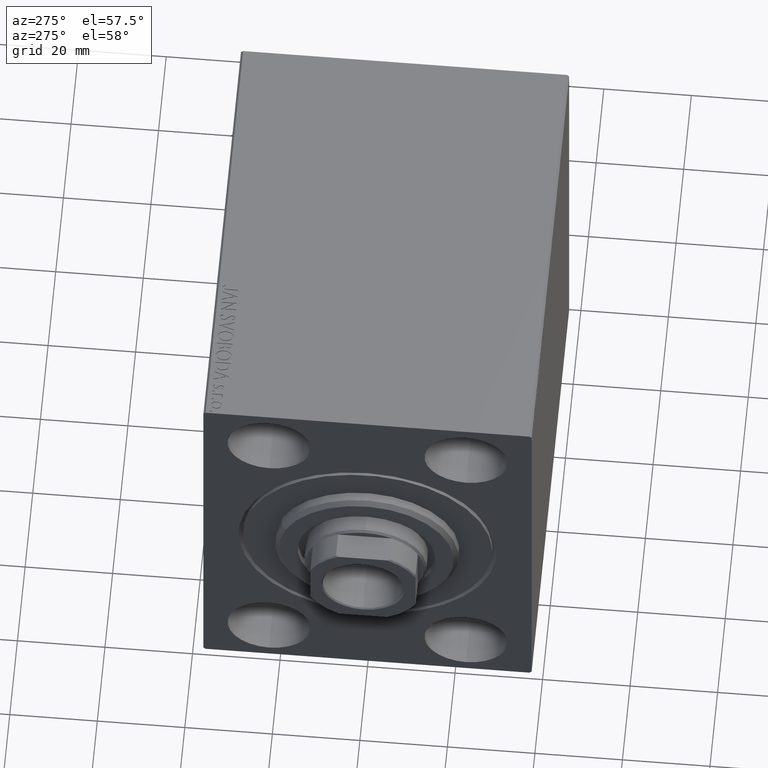
[diagram: clean part render]
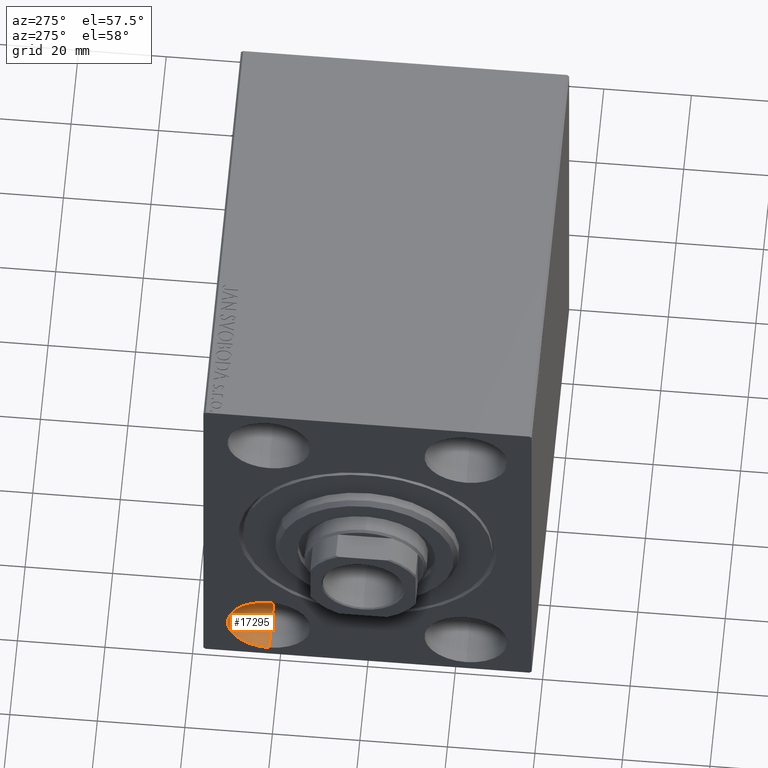
[diagram: same view with one face highlighted and labeled with its STEP entity id]
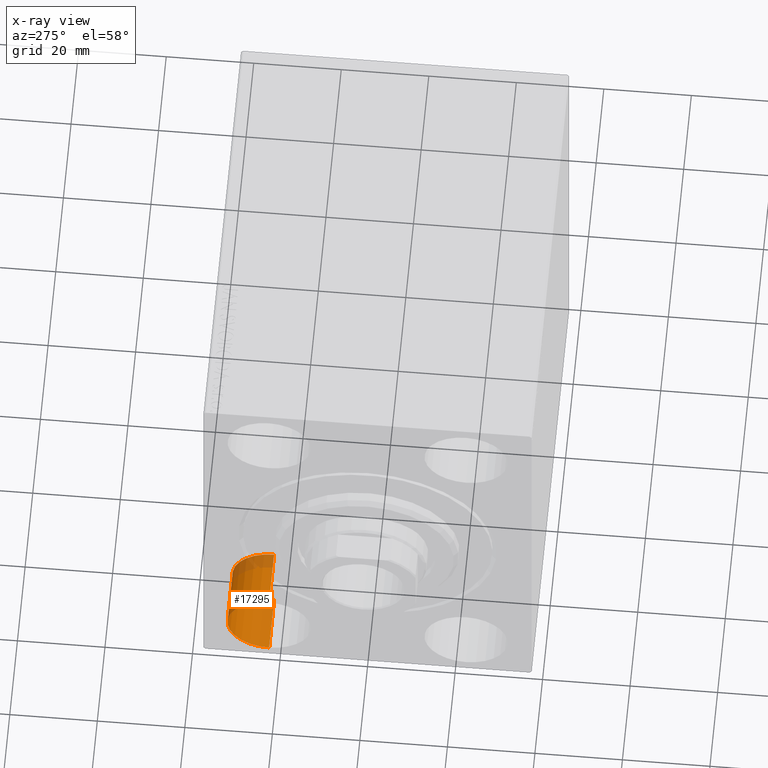
[diagram: x-ray of the same camera — body ghosted, the highlighted face saturated]
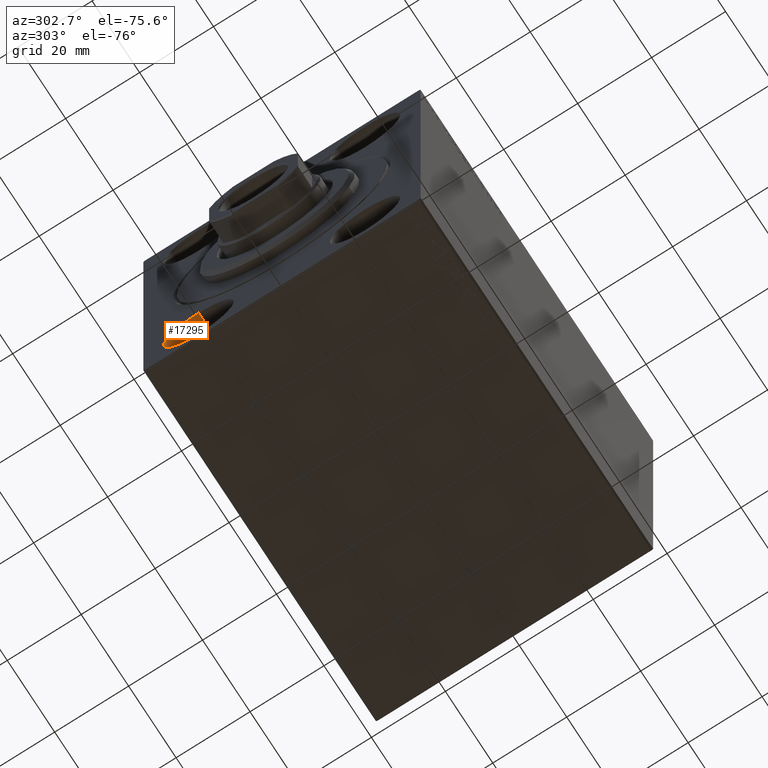
[diagram: same view with one face highlighted and labeled with its STEP entity id]
A machine part, auxiliary view. The second image highlights one B-rep face of the part: STEP entity #17295.
The next image is the same camera in x-ray: the body ghosted, the highlighted face saturated — about 16% of this face is hidden behind the body in this view.
A second angle (auxiliary view) of the same face is appended — the face is thin or edge-on in the first view.
In plain terms, the highlighted cylindrical surface (partial cylindrical patch) has radius 9.5 mm, axis along (-1, -0, -0).
Its self-contained STEP definition (entity closure, byte-faithful):
#354 = ORIENTED_EDGE ( 'NONE', *, *, #7336, .T. ) ;
#2578 = EDGE_CURVE ( 'NONE', #26335, #14999, #38631, .T. ) ;
#3078 = LINE ( 'NONE', #42615, #40041 ) ;
#5338 = DIRECTION ( 'NONE',  ( -1.000000000000000000, -0.000000000000000000, -0.000000000000000000 ) ) ;
#5645 = CIRCLE ( 'NONE', #38066, 9.500000000000001776 ) ;
#7336 = EDGE_CURVE ( 'NONE', #14526, #39468, #5645, .T. ) ;
#8347 = CARTESIAN_POINT ( 'NONE',  ( 0.000000000000000000, 22.49999999999999645, -47.49999999999999289 ) ) ;
#8606 = DIRECTION ( 'NONE',  ( 0.000000000000000000, 0.000000000000000000, 1.000000000000000000 ) ) ;
#8787 = EDGE_LOOP ( 'NONE', ( #32048, #9959, #33641, #354 ) ) ;
#9009 = AXIS2_PLACEMENT_3D ( 'NONE', #21897, #5338, #35576 ) ;
#9959 = ORIENTED_EDGE ( 'NONE', *, *, #2578, .F. ) ;
#11319 = CYLINDRICAL_SURFACE ( 'NONE', #9009, 9.500000000000001776 ) ;
#11750 = FACE_OUTER_BOUND ( 'NONE', #8787, .T. ) ;
#14526 = VERTEX_POINT ( 'NONE', #33490 ) ;
#14999 = VERTEX_POINT ( 'NONE', #15710 ) ;
#15710 = CARTESIAN_POINT ( 'NONE',  ( 13.00000000000000000, 22.49999999999999645, -47.49999999999999289 ) ) ;
#16100 = DIRECTION ( 'NONE',  ( -1.000000000000000000, 0.000000000000000000, 0.000000000000000000 ) ) ;
#17295 = ADVANCED_FACE ( 'NONE', ( #11750 ), #11319, .F. ) ;
#17786 = CARTESIAN_POINT ( 'NONE',  ( 13.00000000000000000, 22.49999999999999645, -28.49999999999998934 ) ) ;
#19160 = EDGE_CURVE ( 'NONE', #26335, #14526, #3078, .T. ) ;
#19215 = DIRECTION ( 'NONE',  ( -1.000000000000000000, -0.000000000000000000, -0.000000000000000000 ) ) ;
#19599 = AXIS2_PLACEMENT_3D ( 'NONE', #21198, #29566, #8606 ) ;
#21198 = CARTESIAN_POINT ( 'NONE',  ( 13.00000000000000000, 22.49999999999999645, -37.99999999999999289 ) ) ;
#21897 = CARTESIAN_POINT ( 'NONE',  ( 13.00000000000000000, 22.49999999999999645, -37.99999999999999289 ) ) ;
#24209 = CARTESIAN_POINT ( 'NONE',  ( 13.00000000000000000, 22.49999999999999645, -47.49999999999999289 ) ) ;
#26335 = VERTEX_POINT ( 'NONE', #17786 ) ;
#29117 = DIRECTION ( 'NONE',  ( 0.000000000000000000, 0.000000000000000000, 1.000000000000000000 ) ) ;
#29566 = DIRECTION ( 'NONE',  ( -1.000000000000000000, 0.000000000000000000, 0.000000000000000000 ) ) ;
#30167 = DIRECTION ( 'NONE',  ( -1.000000000000000000, -0.000000000000000000, -0.000000000000000000 ) ) ;
#32048 = ORIENTED_EDGE ( 'NONE', *, *, #34413, .F. ) ;
#32860 = CARTESIAN_POINT ( 'NONE',  ( 0.000000000000000000, 22.49999999999999645, -37.99999999999999289 ) ) ;
#33490 = CARTESIAN_POINT ( 'NONE',  ( 0.000000000000000000, 22.49999999999999645, -28.49999999999998934 ) ) ;
#33641 = ORIENTED_EDGE ( 'NONE', *, *, #19160, .T. ) ;
#34413 = EDGE_CURVE ( 'NONE', #14999, #39468, #40996, .T. ) ;
#35576 = DIRECTION ( 'NONE',  ( 0.000000000000000000, 0.000000000000000000, 1.000000000000000000 ) ) ;
#38066 = AXIS2_PLACEMENT_3D ( 'NONE', #32860, #16100, #29117 ) ;
#38631 = CIRCLE ( 'NONE', #19599, 9.500000000000001776 ) ;
#39468 = VERTEX_POINT ( 'NONE', #8347 ) ;
#40041 = VECTOR ( 'NONE', #19215, 1000.000000000000000 ) ;
#40288 = VECTOR ( 'NONE', #30167, 1000.000000000000000 ) ;
#40996 = LINE ( 'NONE', #24209, #40288 ) ;
#42615 = CARTESIAN_POINT ( 'NONE',  ( 13.00000000000000000, 22.49999999999999645, -28.49999999999998934 ) ) ;